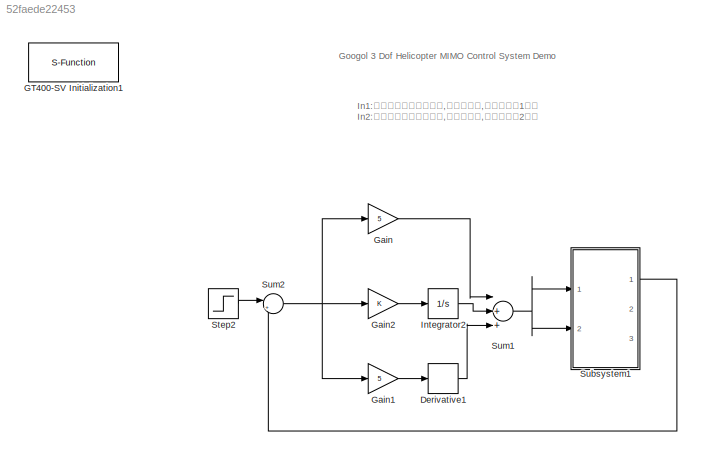
MODEL slx_52faede22453
KIND model
BLOCK [Derivative] Derivative1
BLOCK [S-Function] GT400-SV Initialization1
  EnableBusSupport = off
  FunctionName = Initialize
  Parameters = openloop
  Ports = []
  Priority = 0
BLOCK [Gain] Gain
  Gain = 5
  OutDataTypeStr = Inherit: Inherit via internal rule
  ParamDataTypeStr = Inherit: Inherit via internal rule
  SaturateOnIntegerOverflow = off
BLOCK [Gain] Gain1
  Gain = 5
  OutDataTypeStr = Inherit: Inherit via internal rule
  ParamDataTypeStr = Inherit: Inherit via internal rule
  SaturateOnIntegerOverflow = off
BLOCK [Gain] Gain2
  OutDataTypeStr = Inherit: Inherit via internal rule
  ParamDataTypeStr = Inherit: Inherit via internal rule
  SaturateOnIntegerOverflow = off
BLOCK [Integrator] Integrator2
  Ports = [1, 1]
BLOCK [Step] Step2
  After = 0.3
  SampleTime = 0
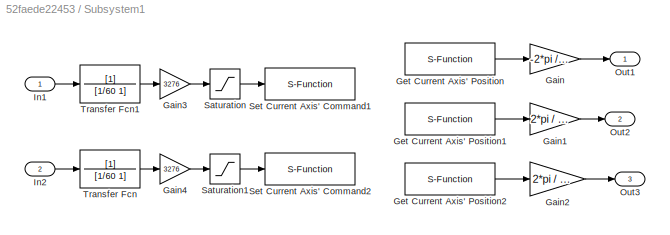
BLOCK [SubSystem] Subsystem1
  FunctionWithSeparateData = off
  MaskHideContents = off
  MinAlgLoopOccurrences = off
  Opaque = off
  Ports = [2, 3]
  PropExecContextOutsideSubsystem = off
  RTWSystemCode = Auto
  RequestExecContextInheritance = off
BLOCK [Gain] Subsystem1/Gain
  Gain = -2*pi / 2400
BLOCK [Gain] Subsystem1/Gain1
  Gain = 2*pi / 2400
BLOCK [Gain] Subsystem1/Gain2
  Gain = 2*pi / 2400
BLOCK [Gain] Subsystem1/Gain3
  Gain = 3276
  OutDataTypeStr = Inherit: Inherit via internal rule
  ParamDataTypeStr = Inherit: Inherit via internal rule
  SaturateOnIntegerOverflow = off
BLOCK [Gain] Subsystem1/Gain4
  Gain = 3276
  OutDataTypeStr = Inherit: Inherit via internal rule
  ParamDataTypeStr = Inherit: Inherit via internal rule
  SaturateOnIntegerOverflow = off
BLOCK [S-Function] Subsystem1/Get Current Axis' Position
  EnableBusSupport = off
  FunctionName = GetPos
  Parameters = axis
  Ports = [0, 1]
  Priority = 1
BLOCK [S-Function] Subsystem1/Get Current Axis' Position1
  EnableBusSupport = off
  FunctionName = GetPos
  Parameters = axis
  Ports = [0, 1]
  Priority = 1
BLOCK [S-Function] Subsystem1/Get Current Axis' Position2
  EnableBusSupport = off
  FunctionName = GetPos
  Parameters = axis
  Ports = [0, 1]
  Priority = 1
BLOCK [Inport] Subsystem1/In1
  IconDisplay = Port number
BLOCK [Inport] Subsystem1/In2
  IconDisplay = Port number
  Port = 2
BLOCK [Outport] Subsystem1/Out1
  IconDisplay = Port number
BLOCK [Outport] Subsystem1/Out2
  IconDisplay = Port number
  Port = 2
BLOCK [Outport] Subsystem1/Out3
  IconDisplay = Port number
  Port = 3
BLOCK [Saturate] Subsystem1/Saturation
  InputPortMap = u0
  LowerLimit = 0
  Ports = [1, 1]
  UpperLimit = 9000
BLOCK [Saturate] Subsystem1/Saturation1
  InputPortMap = u0
  LowerLimit = 0
  Ports = [1, 1]
  UpperLimit = 9000
BLOCK [S-Function] Subsystem1/Set Current Axis' Command1
  EnableBusSupport = off
  FunctionName = SetMtrCmd
  Parameters = axis
  Ports = [1]
  Priority = 1
BLOCK [S-Function] Subsystem1/Set Current Axis' Command2
  EnableBusSupport = off
  FunctionName = SetMtrCmd
  Parameters = axis
  Ports = [1]
  Priority = 1
BLOCK [TransferFcn] Subsystem1/Transfer Fcn
  Denominator = [1/60 1]
BLOCK [TransferFcn] Subsystem1/Transfer Fcn1
  Denominator = [1/60 1]
BLOCK [Sum] Sum1
  InputSameDT = off
  Inputs = |+++
  OutDataTypeStr = Inherit: Inherit via internal rule
  Ports = [3, 1]
  SaturateOnIntegerOverflow = off
BLOCK [Sum] Sum2
  IconShape = round
  InputSameDT = off
  Inputs = |+-
  OutDataTypeStr = Inherit: Inherit via internal rule
  Ports = [2, 1]
  SaturateOnIntegerOverflow = off
ANNOTATION (root): Googol 3 Dof Helicopter MIMO Control System Demo
ANNOTATION (root): In1:从机尾往螺旋桨方向看,右侧螺旋桨,对应手册的1号桨 In2:从机尾往螺旋桨方向看,左侧螺旋桨,对应手册的2号桨
LINE Derivative1:1 -> Sum1:3
LINE Gain1:1 -> Derivative1:1
LINE Gain2:1 -> Integrator2:1
LINE Gain:1 -> Sum1:1
LINE Integrator2:1 -> Sum1:2
LINE Step2:1 -> Sum2:1
LINE Subsystem1/Gain1:1 -> Subsystem1/Out2:1
LINE Subsystem1/Gain2:1 -> Subsystem1/Out3:1
LINE Subsystem1/Gain3:1 -> Subsystem1/Saturation:1
LINE Subsystem1/Gain4:1 -> Subsystem1/Saturation1:1
LINE Subsystem1/Gain:1 -> Subsystem1/Out1:1
LINE Subsystem1/Get Current Axis' Position1:1 -> Subsystem1/Gain1:1
LINE Subsystem1/Get Current Axis' Position2:1 -> Subsystem1/Gain2:1
LINE Subsystem1/Get Current Axis' Position:1 -> Subsystem1/Gain:1
LINE Subsystem1/In1:1 -> Subsystem1/Transfer Fcn1:1
LINE Subsystem1/In2:1 -> Subsystem1/Transfer Fcn:1
LINE Subsystem1/Saturation1:1 -> Subsystem1/Set Current Axis' Command2:1
LINE Subsystem1/Saturation:1 -> Subsystem1/Set Current Axis' Command1:1
LINE Subsystem1/Transfer Fcn1:1 -> Subsystem1/Gain3:1
LINE Subsystem1/Transfer Fcn:1 -> Subsystem1/Gain4:1
LINE Subsystem1:1 -> Sum2:2
NET Sum1:1 -> Subsystem1:1, Subsystem1:2
NET Sum2:1 -> Gain1:1, Gain2:1, Gain:1
note: NET lines group one-source signal fan-out (src -> all destinations, sorted); 1:1 wires keep LINE
